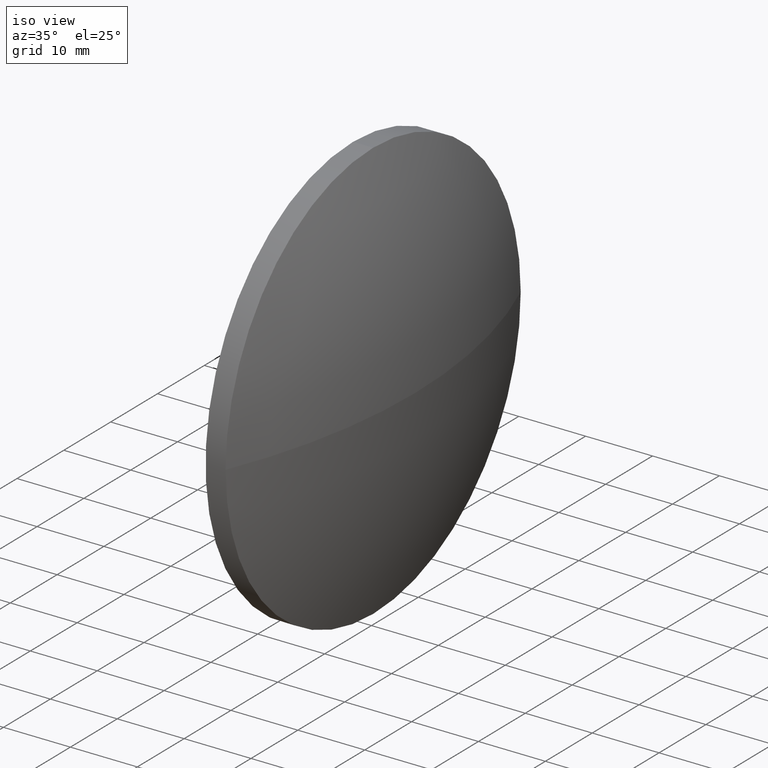
[diagram: clean part render]
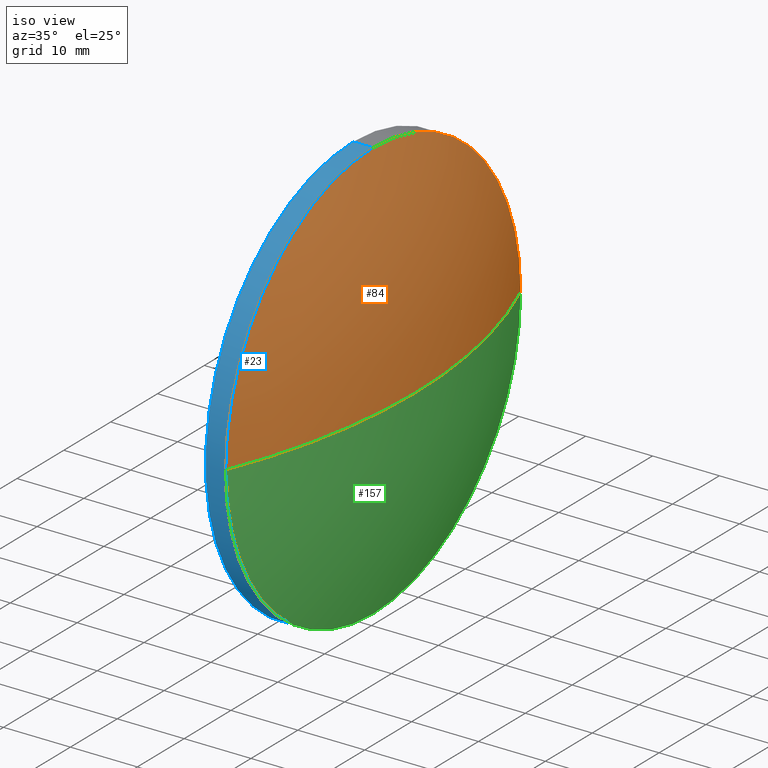
[diagram: same view with three faces highlighted in distinct colors, each labeled with its STEP entity id]
A machine part, iso view with three faces highlighted in distinct colors.
Their STEP definitions:

[orange] entity #84 — the highlighted spherical surface has radius 82.6272 mm.
#2 = DIRECTION ( 'NONE',  ( 0.0000000000000000000, 1.224646799147353200E-016, -1.000000000000000000 ) ) ;
#4 = ORIENTED_EDGE ( 'NONE', *, *, #32, .T. ) ;
#5 = CARTESIAN_POINT ( 'NONE',  ( 229.8933010013870400, 99.01858145695609900, -3.857637417314164300E-015 ) ) ;
#11 = CARTESIAN_POINT ( 'NONE',  ( 229.8933010013870400, 130.5185814569561000, 0.0000000000000000000 ) ) ;
#21 = DIRECTION ( 'NONE',  ( 1.000000000000000000, 0.0000000000000000000, 0.0000000000000000000 ) ) ;
#24 = CARTESIAN_POINT ( 'NONE',  ( 153.5060894629256700, 130.5185814569561000, 0.0000000000000000000 ) ) ;
#25 = VERTEX_POINT ( 'NONE', #65 ) ;
#26 = EDGE_CURVE ( 'NONE', #161, #106, #60, .T. ) ;
#32 = EDGE_CURVE ( 'NONE', #25, #63, #100, .T. ) ;
#34 = DIRECTION ( 'NONE',  ( -1.000000000000000000, -0.0000000000000000000, -0.0000000000000000000 ) ) ;
#41 = AXIS2_PLACEMENT_3D ( 'NONE', #164, #2, #108 ) ;
#45 = EDGE_CURVE ( 'NONE', #106, #63, #182, .T. ) ;
#53 = CARTESIAN_POINT ( 'NONE',  ( 229.8933010013870400, 130.5185814569561000, 31.50000000000000000 ) ) ;
#57 = AXIS2_PLACEMENT_3D ( 'NONE', #11, #34, #131 ) ;
#60 = CIRCLE ( 'NONE', #57, 31.50000000000000000 ) ;
#63 = VERTEX_POINT ( 'NONE', #95 ) ;
#65 = CARTESIAN_POINT ( 'NONE',  ( 236.1333010013870800, 130.5185814569561000, 0.0000000000000000000 ) ) ;
#68 = DIRECTION ( 'NONE',  ( 0.0000000000000000000, 1.000000000000000000, 0.0000000000000000000 ) ) ;
#76 = SPHERICAL_SURFACE ( 'NONE', #184, 82.62721153846139500 ) ;
#83 = AXIS2_PLACEMENT_3D ( 'NONE', #24, #153, #21 ) ;
#84 = ADVANCED_FACE ( 'NONE', ( #150 ), #76, .T. ) ;
#88 = ORIENTED_EDGE ( 'NONE', *, *, #102, .F. ) ;
#89 = CIRCLE ( 'NONE', #41, 82.62721153846139500 ) ;
#93 = DIRECTION ( 'NONE',  ( 0.0000000000000000000, 0.0000000000000000000, 1.000000000000000000 ) ) ;
#95 = CARTESIAN_POINT ( 'NONE',  ( 229.8933010013870400, 162.0185814569561300, 0.0000000000000000000 ) ) ;
#100 = CIRCLE ( 'NONE', #83, 82.62721153846139500 ) ;
#102 = EDGE_CURVE ( 'NONE', #25, #161, #89, .T. ) ;
#105 = CARTESIAN_POINT ( 'NONE',  ( 229.8933010013870400, 130.5185814569561000, 0.0000000000000000000 ) ) ;
#106 = VERTEX_POINT ( 'NONE', #53 ) ;
#108 = DIRECTION ( 'NONE',  ( 0.0000000000000000000, 1.000000000000000000, 1.224646799147353200E-016 ) ) ;
#113 = EDGE_LOOP ( 'NONE', ( #88, #4, #170, #125 ) ) ;
#125 = ORIENTED_EDGE ( 'NONE', *, *, #26, .F. ) ;
#131 = DIRECTION ( 'NONE',  ( 0.0000000000000000000, 0.0000000000000000000, 1.000000000000000000 ) ) ;
#150 = FACE_OUTER_BOUND ( 'NONE', #113, .T. ) ;
#153 = DIRECTION ( 'NONE',  ( -0.0000000000000000000, 0.0000000000000000000, 1.000000000000000000 ) ) ;
#161 = VERTEX_POINT ( 'NONE', #5 ) ;
#162 = AXIS2_PLACEMENT_3D ( 'NONE', #105, #176, #93 ) ;
#164 = CARTESIAN_POINT ( 'NONE',  ( 153.5060894629256700, 130.5185814569561000, 0.0000000000000000000 ) ) ;
#170 = ORIENTED_EDGE ( 'NONE', *, *, #45, .F. ) ;
#176 = DIRECTION ( 'NONE',  ( -1.000000000000000000, -0.0000000000000000000, -0.0000000000000000000 ) ) ;
#178 = CARTESIAN_POINT ( 'NONE',  ( 153.5060894629256700, 130.5185814569561000, 0.0000000000000000000 ) ) ;
#179 = DIRECTION ( 'NONE',  ( -0.0000000000000000000, 0.0000000000000000000, -1.000000000000000000 ) ) ;
#182 = CIRCLE ( 'NONE', #162, 31.50000000000000000 ) ;
#184 = AXIS2_PLACEMENT_3D ( 'NONE', #178, #179, #68 ) ;

[blue] entity #23 — the highlighted cylindrical surface (partial cylindrical patch) has radius 31.5 mm, axis along (-1, -0, -0).
#5 = CARTESIAN_POINT ( 'NONE',  ( 229.8933010013870400, 99.01858145695609900, -3.857637417314164300E-015 ) ) ;
#6 = EDGE_CURVE ( 'NONE', #92, #130, #160, .T. ) ;
#11 = CARTESIAN_POINT ( 'NONE',  ( 229.8933010013870400, 130.5185814569561000, 0.0000000000000000000 ) ) ;
#17 = EDGE_LOOP ( 'NONE', ( #73, #177, #91, #186, #29 ) ) ;
#18 = LINE ( 'NONE', #47, #145 ) ;
#19 = CARTESIAN_POINT ( 'NONE',  ( 226.8933010013870400, 130.5185814569561000, -31.50000000000000000 ) ) ;
#20 = EDGE_CURVE ( 'NONE', #101, #92, #18, .T. ) ;
#22 = CARTESIAN_POINT ( 'NONE',  ( 229.8933010013870400, 130.5185814569561000, 0.0000000000000000000 ) ) ;
#23 = ADVANCED_FACE ( 'NONE', ( #173 ), #171, .T. ) ;
#26 = EDGE_CURVE ( 'NONE', #161, #106, #60, .T. ) ;
#29 = ORIENTED_EDGE ( 'NONE', *, *, #6, .F. ) ;
#30 = EDGE_CURVE ( 'NONE', #106, #130, #116, .T. ) ;
#34 = DIRECTION ( 'NONE',  ( -1.000000000000000000, -0.0000000000000000000, -0.0000000000000000000 ) ) ;
#35 = AXIS2_PLACEMENT_3D ( 'NONE', #174, #46, #64 ) ;
#42 = AXIS2_PLACEMENT_3D ( 'NONE', #117, #49, #148 ) ;
#46 = DIRECTION ( 'NONE',  ( -1.000000000000000000, -0.0000000000000000000, -0.0000000000000000000 ) ) ;
#47 = CARTESIAN_POINT ( 'NONE',  ( 218.1236667371545400, 130.5185814569561000, -31.50000000000000000 ) ) ;
#48 = CIRCLE ( 'NONE', #147, 31.50000000000000000 ) ;
#49 = DIRECTION ( 'NONE',  ( -1.000000000000000000, -0.0000000000000000000, -0.0000000000000000000 ) ) ;
#52 = VECTOR ( 'NONE', #168, 1000.000000000000000 ) ;
#53 = CARTESIAN_POINT ( 'NONE',  ( 229.8933010013870400, 130.5185814569561000, 31.50000000000000000 ) ) ;
#54 = DIRECTION ( 'NONE',  ( 0.0000000000000000000, 0.0000000000000000000, 1.000000000000000000 ) ) ;
#55 = CARTESIAN_POINT ( 'NONE',  ( 226.8933010013870400, 130.5185814569561000, 31.50000000000000000 ) ) ;
#57 = AXIS2_PLACEMENT_3D ( 'NONE', #11, #34, #131 ) ;
#60 = CIRCLE ( 'NONE', #57, 31.50000000000000000 ) ;
#64 = DIRECTION ( 'NONE',  ( 0.0000000000000000000, 0.0000000000000000000, 1.000000000000000000 ) ) ;
#73 = ORIENTED_EDGE ( 'NONE', *, *, #20, .F. ) ;
#79 = CARTESIAN_POINT ( 'NONE',  ( 229.8933010013870400, 130.5185814569561000, -31.50000000000000000 ) ) ;
#91 = ORIENTED_EDGE ( 'NONE', *, *, #26, .T. ) ;
#92 = VERTEX_POINT ( 'NONE', #19 ) ;
#101 = VERTEX_POINT ( 'NONE', #79 ) ;
#106 = VERTEX_POINT ( 'NONE', #53 ) ;
#114 = DIRECTION ( 'NONE',  ( -1.000000000000000000, -0.0000000000000000000, -0.0000000000000000000 ) ) ;
#116 = LINE ( 'NONE', #137, #52 ) ;
#117 = CARTESIAN_POINT ( 'NONE',  ( 218.1236667371545400, 130.5185814569561000, 0.0000000000000000000 ) ) ;
#122 = DIRECTION ( 'NONE',  ( -1.000000000000000000, -0.0000000000000000000, -0.0000000000000000000 ) ) ;
#130 = VERTEX_POINT ( 'NONE', #55 ) ;
#131 = DIRECTION ( 'NONE',  ( 0.0000000000000000000, 0.0000000000000000000, 1.000000000000000000 ) ) ;
#137 = CARTESIAN_POINT ( 'NONE',  ( 218.1236667371545400, 130.5185814569561000, 31.50000000000000000 ) ) ;
#145 = VECTOR ( 'NONE', #114, 1000.000000000000000 ) ;
#147 = AXIS2_PLACEMENT_3D ( 'NONE', #22, #122, #54 ) ;
#148 = DIRECTION ( 'NONE',  ( 0.0000000000000000000, 0.0000000000000000000, 1.000000000000000000 ) ) ;
#160 = CIRCLE ( 'NONE', #35, 31.50000000000000000 ) ;
#161 = VERTEX_POINT ( 'NONE', #5 ) ;
#165 = EDGE_CURVE ( 'NONE', #101, #161, #48, .T. ) ;
#168 = DIRECTION ( 'NONE',  ( -1.000000000000000000, -0.0000000000000000000, -0.0000000000000000000 ) ) ;
#171 = CYLINDRICAL_SURFACE ( 'NONE', #42, 31.50000000000000000 ) ;
#173 = FACE_OUTER_BOUND ( 'NONE', #17, .T. ) ;
#174 = CARTESIAN_POINT ( 'NONE',  ( 226.8933010013870400, 130.5185814569561000, 0.0000000000000000000 ) ) ;
#177 = ORIENTED_EDGE ( 'NONE', *, *, #165, .T. ) ;
#186 = ORIENTED_EDGE ( 'NONE', *, *, #30, .T. ) ;

[green] entity #157 — the highlighted spherical surface has radius 82.6272 mm.
#2 = DIRECTION ( 'NONE',  ( 0.0000000000000000000, 1.224646799147353200E-016, -1.000000000000000000 ) ) ;
#5 = CARTESIAN_POINT ( 'NONE',  ( 229.8933010013870400, 99.01858145695609900, -3.857637417314164300E-015 ) ) ;
#8 = FACE_OUTER_BOUND ( 'NONE', #119, .T. ) ;
#16 = CARTESIAN_POINT ( 'NONE',  ( 153.5060894629256700, 130.5185814569561000, 0.0000000000000000000 ) ) ;
#21 = DIRECTION ( 'NONE',  ( 1.000000000000000000, 0.0000000000000000000, 0.0000000000000000000 ) ) ;
#22 = CARTESIAN_POINT ( 'NONE',  ( 229.8933010013870400, 130.5185814569561000, 0.0000000000000000000 ) ) ;
#24 = CARTESIAN_POINT ( 'NONE',  ( 153.5060894629256700, 130.5185814569561000, 0.0000000000000000000 ) ) ;
#25 = VERTEX_POINT ( 'NONE', #65 ) ;
#32 = EDGE_CURVE ( 'NONE', #25, #63, #100, .T. ) ;
#39 = DIRECTION ( 'NONE',  ( 0.0000000000000000000, 1.000000000000000000, 0.0000000000000000000 ) ) ;
#41 = AXIS2_PLACEMENT_3D ( 'NONE', #164, #2, #108 ) ;
#43 = AXIS2_PLACEMENT_3D ( 'NONE', #16, #51, #39 ) ;
#48 = CIRCLE ( 'NONE', #147, 31.50000000000000000 ) ;
#50 = AXIS2_PLACEMENT_3D ( 'NONE', #151, #175, #109 ) ;
#51 = DIRECTION ( 'NONE',  ( -0.0000000000000000000, 0.0000000000000000000, -1.000000000000000000 ) ) ;
#54 = DIRECTION ( 'NONE',  ( 0.0000000000000000000, 0.0000000000000000000, 1.000000000000000000 ) ) ;
#59 = ORIENTED_EDGE ( 'NONE', *, *, #180, .F. ) ;
#63 = VERTEX_POINT ( 'NONE', #95 ) ;
#65 = CARTESIAN_POINT ( 'NONE',  ( 236.1333010013870800, 130.5185814569561000, 0.0000000000000000000 ) ) ;
#70 = ORIENTED_EDGE ( 'NONE', *, *, #32, .F. ) ;
#79 = CARTESIAN_POINT ( 'NONE',  ( 229.8933010013870400, 130.5185814569561000, -31.50000000000000000 ) ) ;
#83 = AXIS2_PLACEMENT_3D ( 'NONE', #24, #153, #21 ) ;
#89 = CIRCLE ( 'NONE', #41, 82.62721153846139500 ) ;
#95 = CARTESIAN_POINT ( 'NONE',  ( 229.8933010013870400, 162.0185814569561300, 0.0000000000000000000 ) ) ;
#98 = CIRCLE ( 'NONE', #50, 31.50000000000000000 ) ;
#100 = CIRCLE ( 'NONE', #83, 82.62721153846139500 ) ;
#101 = VERTEX_POINT ( 'NONE', #79 ) ;
#102 = EDGE_CURVE ( 'NONE', #25, #161, #89, .T. ) ;
#108 = DIRECTION ( 'NONE',  ( 0.0000000000000000000, 1.000000000000000000, 1.224646799147353200E-016 ) ) ;
#109 = DIRECTION ( 'NONE',  ( 0.0000000000000000000, 0.0000000000000000000, 1.000000000000000000 ) ) ;
#119 = EDGE_LOOP ( 'NONE', ( #70, #124, #163, #59 ) ) ;
#122 = DIRECTION ( 'NONE',  ( -1.000000000000000000, -0.0000000000000000000, -0.0000000000000000000 ) ) ;
#124 = ORIENTED_EDGE ( 'NONE', *, *, #102, .T. ) ;
#142 = SPHERICAL_SURFACE ( 'NONE', #43, 82.62721153846139500 ) ;
#147 = AXIS2_PLACEMENT_3D ( 'NONE', #22, #122, #54 ) ;
#151 = CARTESIAN_POINT ( 'NONE',  ( 229.8933010013870400, 130.5185814569561000, 0.0000000000000000000 ) ) ;
#153 = DIRECTION ( 'NONE',  ( -0.0000000000000000000, 0.0000000000000000000, 1.000000000000000000 ) ) ;
#157 = ADVANCED_FACE ( 'NONE', ( #8 ), #142, .T. ) ;
#161 = VERTEX_POINT ( 'NONE', #5 ) ;
#163 = ORIENTED_EDGE ( 'NONE', *, *, #165, .F. ) ;
#164 = CARTESIAN_POINT ( 'NONE',  ( 153.5060894629256700, 130.5185814569561000, 0.0000000000000000000 ) ) ;
#165 = EDGE_CURVE ( 'NONE', #101, #161, #48, .T. ) ;
#175 = DIRECTION ( 'NONE',  ( -1.000000000000000000, -0.0000000000000000000, -0.0000000000000000000 ) ) ;
#180 = EDGE_CURVE ( 'NONE', #63, #101, #98, .T. ) ;